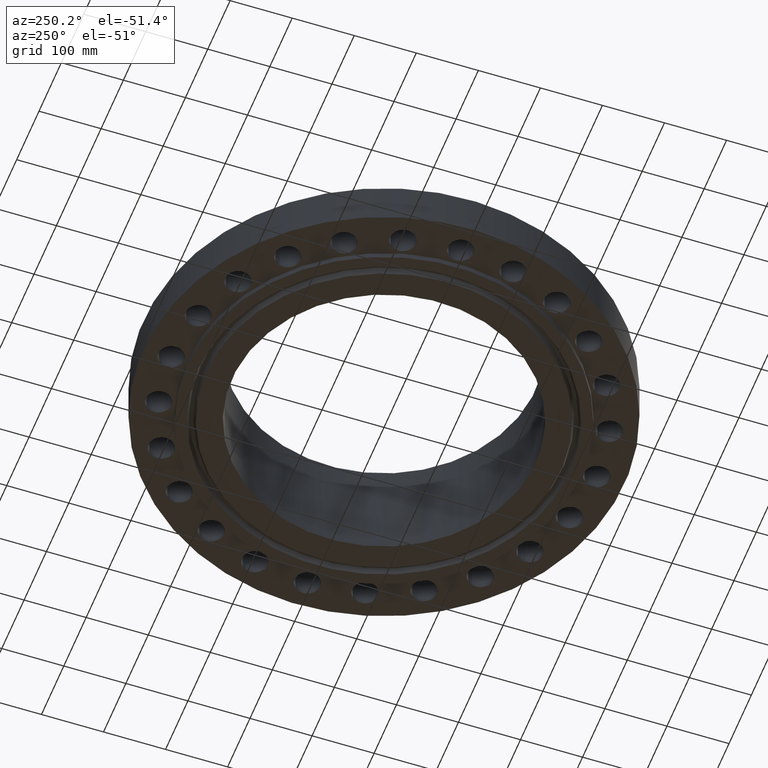
[diagram: clean part render]
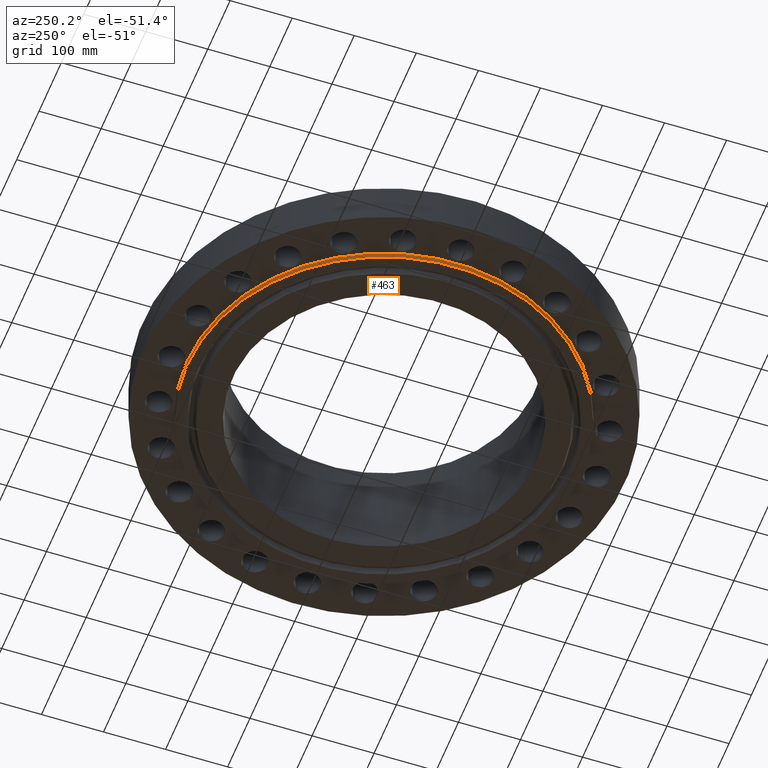
[diagram: same view with one face highlighted and labeled with its STEP entity id]
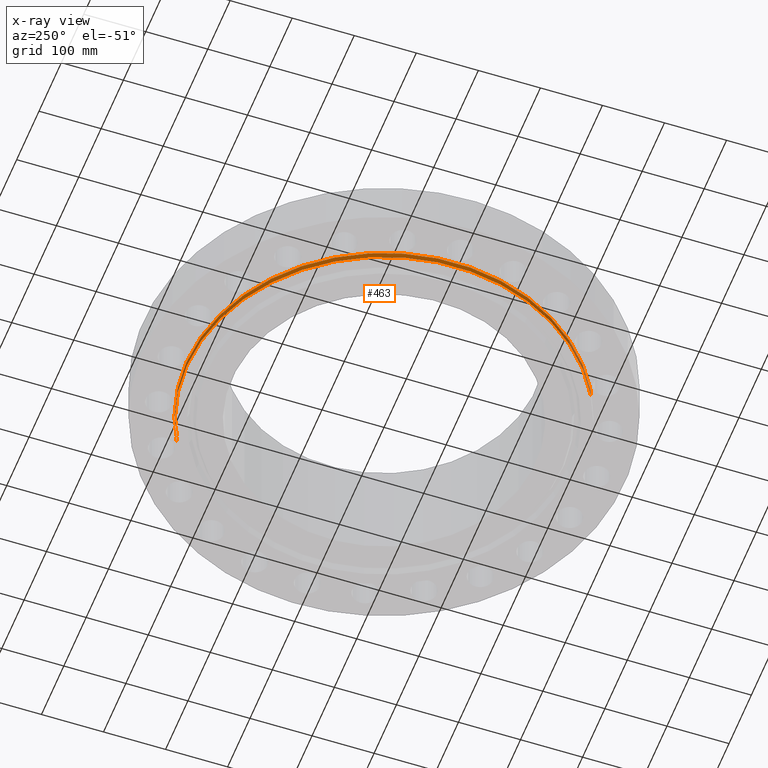
[diagram: x-ray of the same camera — body ghosted, the highlighted face saturated]
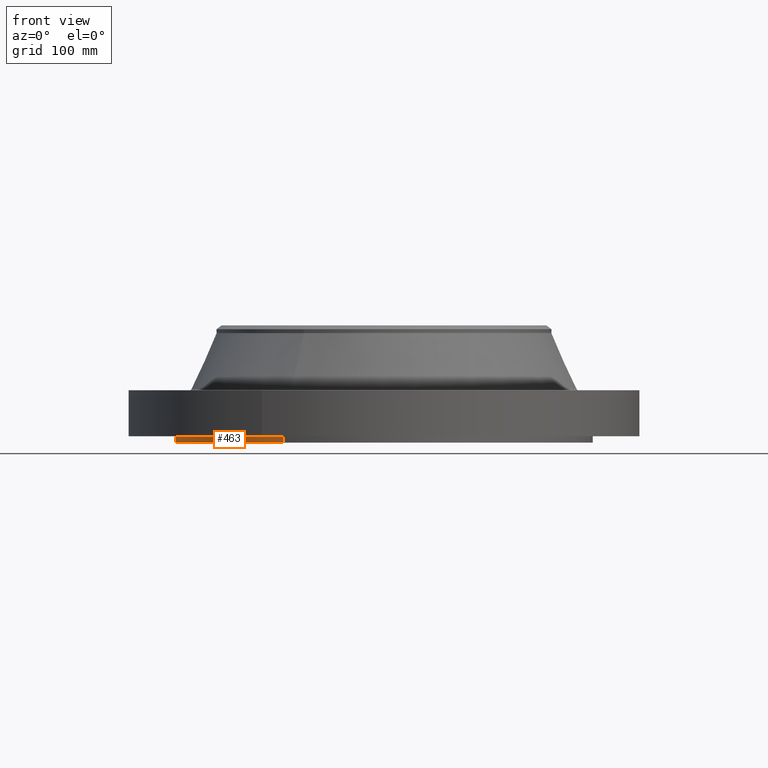
[diagram: same view with one face highlighted and labeled with its STEP entity id]
A machine part, auxiliary view. The second image highlights one B-rep face of the part: STEP entity #463.
The next image is the same camera in x-ray: the body ghosted, the highlighted face saturated — about 0% of this face is hidden behind the body in this view.
A second angle (front view) of the same face is appended — the face is thin or edge-on in the first view.
In plain terms, the highlighted cylindrical surface (partial cylindrical patch) has radius 317.5 mm, axis along (0, 0, -1).
Its self-contained STEP definition (entity closure, byte-faithful):
#427=AXIS2_PLACEMENT_3D('Cylinder Axis2P3D',#424,#425,#426) ;
#431=AXIS2_PLACEMENT_3D('Circle Axis2P3D',#429,#430,$) ;
#447=AXIS2_PLACEMENT_3D('Circle Axis2P3D',#445,#446,$) ;
#424=CARTESIAN_POINT('Axis2P3D Location',(0.,0.,3.12250000001)) ;
#429=CARTESIAN_POINT('Axis2P3D Location',(0.,0.,-0.375000000002)) ;
#433=CARTESIAN_POINT('Vertex',(-5.99281923258,-10.9697820237,-0.375000000002)) ;
#435=CARTESIAN_POINT('Vertex',(5.99281923258,10.9697820237,-0.375000000002)) ;
#438=CARTESIAN_POINT('Line Origine',(-5.99281923258,-10.9697820237,-0.187500000001)) ;
#442=CARTESIAN_POINT('Vertex',(-5.99281923258,-10.9697820237,1.67844740731E-015)) ;
#445=CARTESIAN_POINT('Axis2P3D Location',(0.,0.,1.67844740731E-015)) ;
#449=CARTESIAN_POINT('Vertex',(5.99281923258,10.9697820237,1.67844740731E-015)) ;
#452=CARTESIAN_POINT('Line Origine',(5.99281923258,10.9697820237,-0.187500000001)) ;
#425=DIRECTION('Axis2P3D Direction',(0.,0.,-0.0393700787402)) ;
#426=DIRECTION('Axis2P3D XDirection',(0.0188750212049,0.0345504945626,0.)) ;
#430=DIRECTION('Axis2P3D Direction',(0.,0.,-0.0393700787402)) ;
#439=DIRECTION('Vector Direction',(0.,0.,-0.0393700787402)) ;
#446=DIRECTION('Axis2P3D Direction',(0.,0.,-0.0393700787402)) ;
#453=DIRECTION('Vector Direction',(0.,0.,-0.0393700787402)) ;
#440=VECTOR('Line Direction',#439,0.0393700787402) ;
#454=VECTOR('Line Direction',#453,0.0393700787402) ;
#458=ORIENTED_EDGE('',*,*,#437,.F.) ;
#459=ORIENTED_EDGE('',*,*,#444,.T.) ;
#460=ORIENTED_EDGE('',*,*,#451,.T.) ;
#461=ORIENTED_EDGE('',*,*,#456,.F.) ;
#463=ADVANCED_FACE('PartBody',(#462),#428,.T.) ;
#432=CIRCLE('generated circle',#431,12.5000000001) ;
#448=CIRCLE('generated circle',#447,12.5000000001) ;
#428=CYLINDRICAL_SURFACE('generated cylinder',#427,12.5000000001) ;
#437=EDGE_CURVE('',#434,#436,#432,.T.) ;
#444=EDGE_CURVE('',#434,#443,#441,.F.) ;
#451=EDGE_CURVE('',#443,#450,#448,.T.) ;
#456=EDGE_CURVE('',#436,#450,#455,.F.) ;
#457=EDGE_LOOP('',(#458,#459,#460,#461)) ;
#462=FACE_OUTER_BOUND('',#457,.T.) ;
#441=LINE('Line',#438,#440) ;
#455=LINE('Line',#452,#454) ;
#434=VERTEX_POINT('',#433) ;
#436=VERTEX_POINT('',#435) ;
#443=VERTEX_POINT('',#442) ;
#450=VERTEX_POINT('',#449) ;